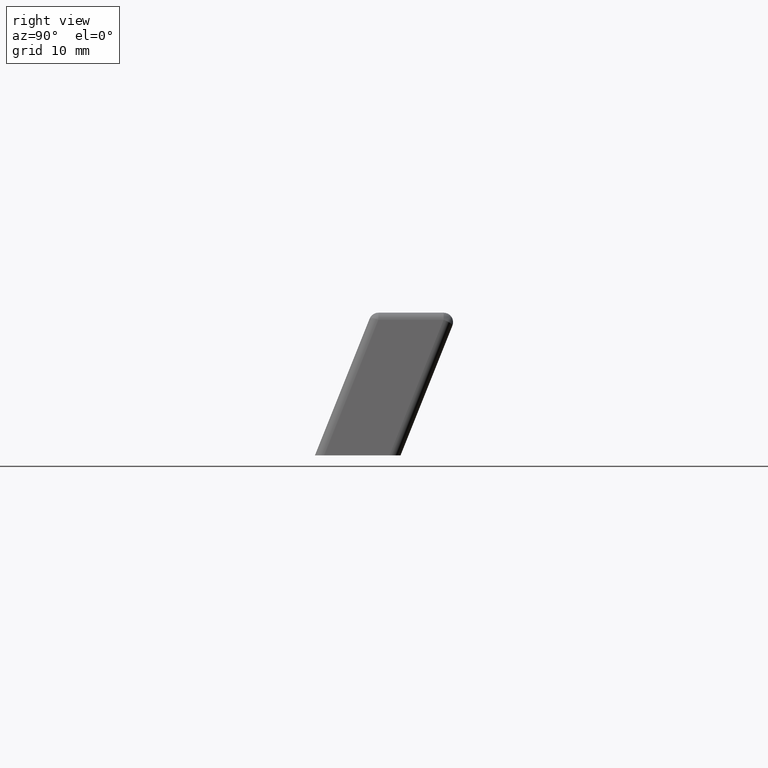
[diagram: clean part render]
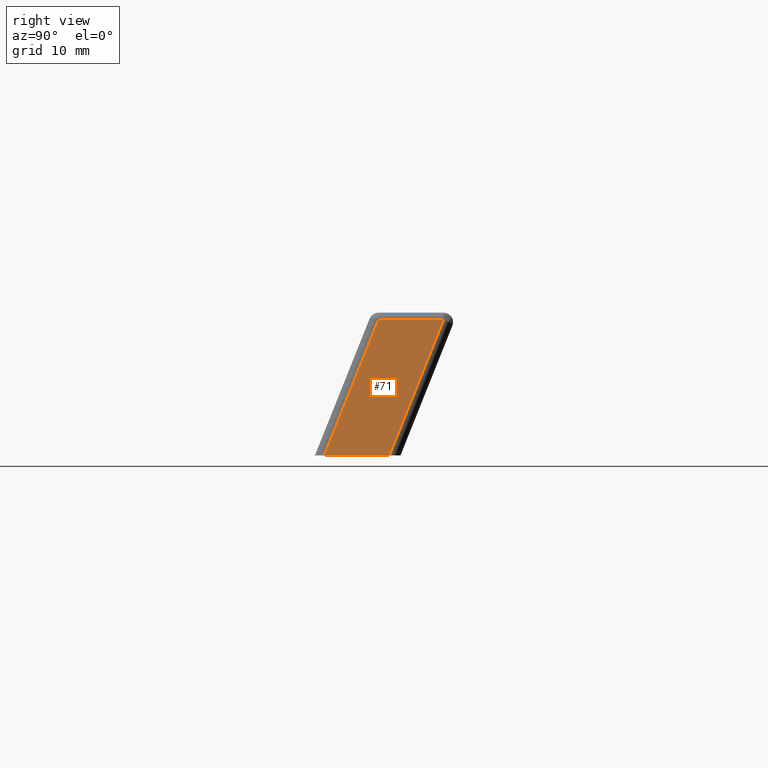
[diagram: same view with one face highlighted and labeled with its STEP entity id]
A machine part, right view. The second image highlights one B-rep face of the part: STEP entity #71.
In plain terms, the highlighted planar face has unit normal (-0.9664, 0, -0.257).
Its self-contained STEP definition (entity closure, byte-faithful):
#71=ADVANCED_FACE('',(#392),#391,.F.);
#391=PLANE('',#1231);
#392=FACE_OUTER_BOUND('',#1232,.T.);
#1228=CARTESIAN_POINT('',(3.73792053162E+01,-2.80601931750E-01,-1.42570408707E+00));
#1229=DIRECTION('',(-9.66400533326E-01,0.00000000000E+00,-2.57040870654E-01));
#1230=DIRECTION('',(-2.57040870654E-01,0.00000000000E+00,9.66400533326E-01));
#1231=AXIS2_PLACEMENT_3D('',#1228,#1229,#1230);
#1232=EDGE_LOOP('',(#1405,#1406,#1407,#1408));
#1405=ORIENTED_EDGE('',*,*,#1537,.F.);
#1406=ORIENTED_EDGE('',*,*,#1518,.T.);
#1407=ORIENTED_EDGE('',*,*,#1526,.T.);
#1408=ORIENTED_EDGE('',*,*,#1473,.T.);
#1473=EDGE_CURVE('',#1632,#1645,#1653,.T.);
#1518=EDGE_CURVE('',#1955,#1942,#1956,.T.);
#1526=EDGE_CURVE('',#1942,#1632,#2008,.T.);
#1537=EDGE_CURVE('',#1955,#1645,#2074,.T.);
#1632=VERTEX_POINT('',#2211);
#1645=VERTEX_POINT('',#2220);
#1653=LINE('',#2225,#2226);
#1942=VERTEX_POINT('',#2405);
#1955=VERTEX_POINT('',#2414);
#1956=LINE('',#2415,#2416);
#2008=LINE('',#2448,#2449);
#2074=LINE('',#2481,#2482);
#2211=CARTESIAN_POINT('',(3.32079468378E+01,6.67663295086E+00,1.42570408707E+01));
#2220=CARTESIAN_POINT('',(3.70000000000E+01,9.74213430682E-01,0.00000000000E+00));
#2225=CARTESIAN_POINT('',(3.32079468378E+01,6.67663295086E+00,1.42570408707E+01));
#2226=VECTOR('',#2227,1.58164619924E+01);
#2227=DIRECTION('',(2.39753565875E-01,-3.60536985005E-01,-9.01405186414E-01));
#2405=CARTESIAN_POINT('',(3.32079468378E+01,1.35223670550E+01,1.42570408707E+01));
#2414=CARTESIAN_POINT('',(3.70000000000E+01,7.82017835546E+00,0.00000000000E+00));
#2415=CARTESIAN_POINT('',(3.70000000000E+01,7.82017835546E+00,0.00000000000E+00));
#2416=VECTOR('',#2417,1.58163787745E+01);
#2417=DIRECTION('',(-2.39754827339E-01,3.60524288198E-01,9.01409929159E-01));
#2448=CARTESIAN_POINT('',(3.32079468378E+01,1.35223670550E+01,1.42570408707E+01));
#2449=VECTOR('',#2450,6.84573410413E+00);
#2450=DIRECTION('',(0.00000000000E+00,-1.00000000000E+00,0.00000000000E+00));
#2481=CARTESIAN_POINT('',(3.70000000000E+01,7.82017835546E+00,0.00000000000E+00));
#2482=VECTOR('',#2483,6.84596492478E+00);
#2483=DIRECTION('',(0.00000000000E+00,-1.00000000000E+00,0.00000000000E+00));